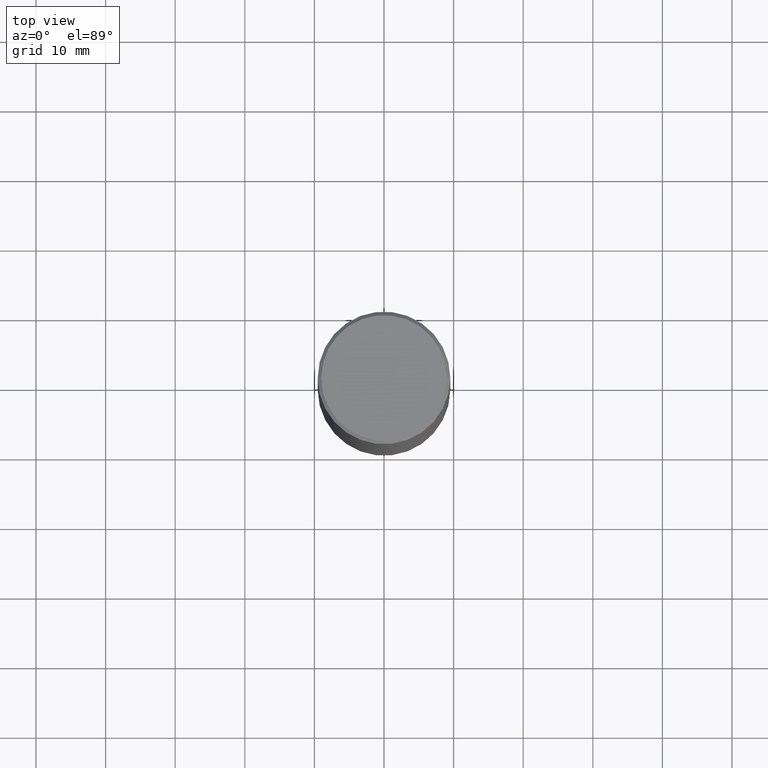
[diagram: clean part render]
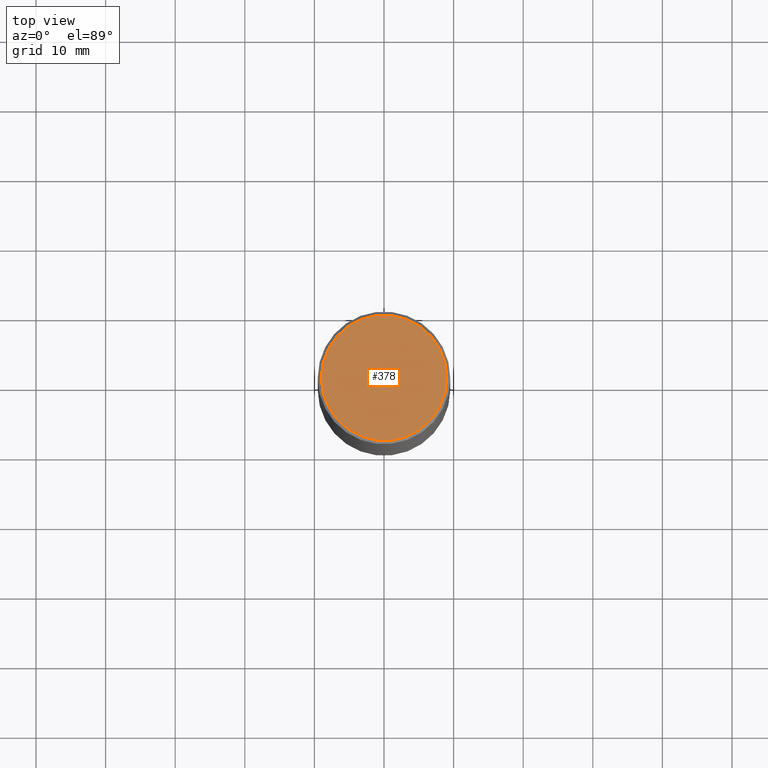
[diagram: same view with one face highlighted and labeled with its STEP entity id]
A machine part, top view. The second image highlights one B-rep face of the part: STEP entity #378.
In plain terms, the highlighted planar face has unit normal (0, -0, -1).
Its self-contained STEP definition (entity closure, byte-faithful):
#14 = ORIENTED_EDGE ( 'NONE', *, *, #311, .T. ) ;
#17 = CARTESIAN_POINT ( 'NONE',  ( 2.478951750578617898E-15, 0.3549999999999990941, -1.237341619044263272E-15 ) ) ;
#28 = VERTEX_POINT ( 'NONE', #474 ) ;
#45 = PLANE ( 'NONE',  #460 ) ;
#62 = DIRECTION ( 'NONE',  ( -2.445468806185136597E-29, 3.491481338843145583E-15, 1.000000000000000000 ) ) ;
#73 = DIRECTION ( 'NONE',  ( 1.000000000000000000, -6.982962677686265133E-15, 4.876231632512000515E-29 ) ) ;
#92 = EDGE_CURVE ( 'NONE', #365, #28, #229, .T. ) ;
#126 = DIRECTION ( 'NONE',  ( -1.000000000000000000, 6.982962677686265922E-15, -4.876176775795935793E-29 ) ) ;
#199 = FACE_OUTER_BOUND ( 'NONE', #358, .T. ) ;
#214 = AXIS2_PLACEMENT_3D ( 'NONE', #476, #62, #369 ) ;
#229 = CIRCLE ( 'NONE', #214, 0.3549999999999990941 ) ;
#254 = AXIS2_PLACEMENT_3D ( 'NONE', #492, #304, #73 ) ;
#304 = DIRECTION ( 'NONE',  ( -2.445468806185136597E-29, 3.491481338843145583E-15, 1.000000000000000000 ) ) ;
#305 = CIRCLE ( 'NONE', #254, 0.3549999999999990941 ) ;
#311 = EDGE_CURVE ( 'NONE', #28, #365, #305, .T. ) ;
#319 = DIRECTION ( 'NONE',  ( 2.438088387897960049E-29, -3.491481338843145188E-15, -1.000000000000000000 ) ) ;
#341 = ORIENTED_EDGE ( 'NONE', *, *, #92, .T. ) ;
#358 = EDGE_LOOP ( 'NONE', ( #341, #14 ) ) ;
#365 = VERTEX_POINT ( 'NONE', #473 ) ;
#369 = DIRECTION ( 'NONE',  ( 1.000000000000000000, -6.982962677686265133E-15, 4.876231632512000515E-29 ) ) ;
#378 = ADVANCED_FACE ( 'NONE', ( #199 ), #45, .F. ) ;
#460 = AXIS2_PLACEMENT_3D ( 'NONE', #17, #319, #126 ) ;
#473 = CARTESIAN_POINT ( 'NONE',  ( -0.3549999999999990941, 2.513866563967049153E-15, 4.268512490082953109E-18 ) ) ;
#474 = CARTESIAN_POINT ( 'NONE',  ( 0.3549999999999990941, -2.538996582575035132E-15, 4.268512490117958041E-18 ) ) ;
#476 = CARTESIAN_POINT ( 'NONE',  ( -1.043851414335219820E-46, 1.490343170380447200E-32, 4.268512490100411279E-18 ) ) ;
#492 = CARTESIAN_POINT ( 'NONE',  ( -1.043851414335219820E-46, 1.490343170380447200E-32, 4.268512490100411279E-18 ) ) ;